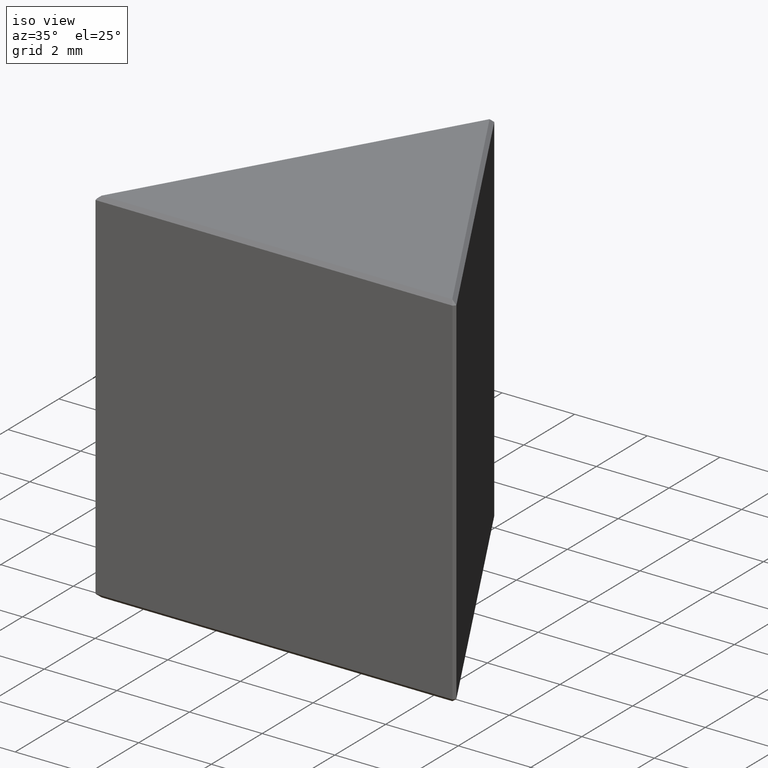
[diagram: clean part render]
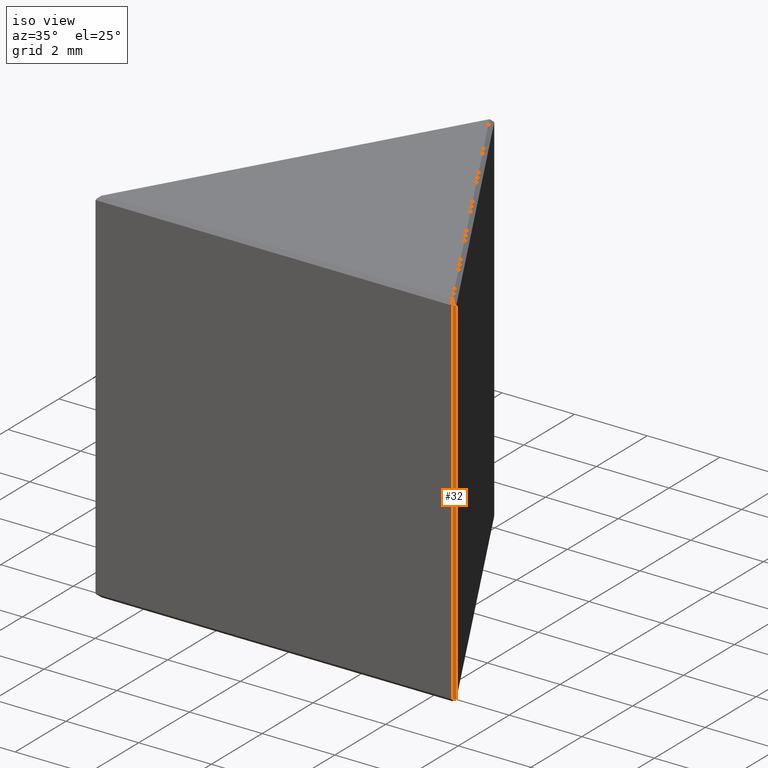
[diagram: same view with one face highlighted and labeled with its STEP entity id]
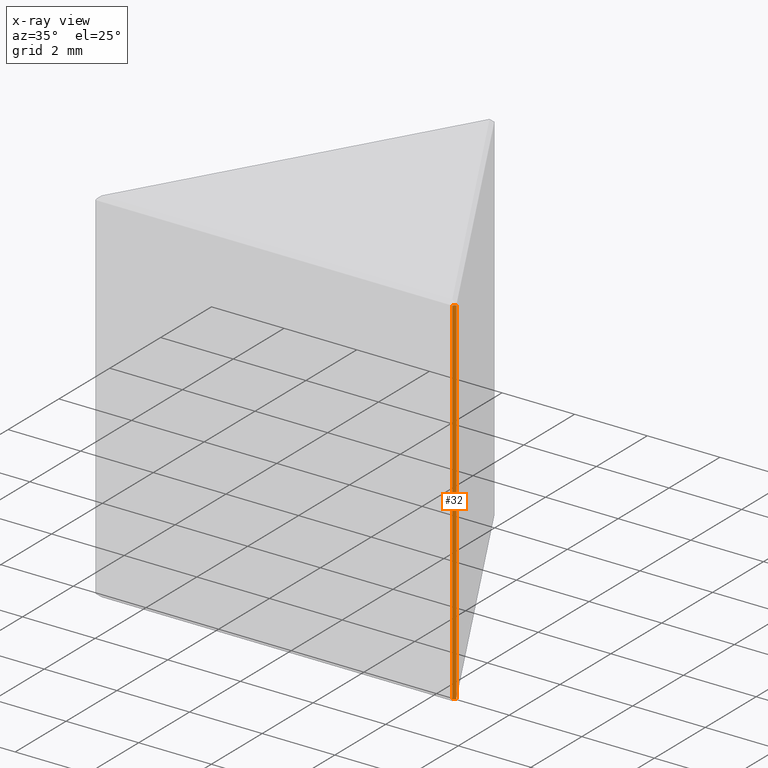
[diagram: x-ray of the same camera — body ghosted, the highlighted face saturated]
A machine part, iso view. The second image highlights one B-rep face of the part: STEP entity #32.
The next image is the same camera in x-ray: the body ghosted, the highlighted face saturated — about 0% of this face is hidden behind the body in this view.
In plain terms, the highlighted planar face has unit normal (-0.7071, 0.7071, 0).
Its self-contained STEP definition (entity closure, byte-faithful):
#7 = CARTESIAN_POINT ( 'NONE',  ( 4.899999999999998579, -8.660254037844387298, 0.09999999999999939493 ) ) ;
#23 = VECTOR ( 'NONE', #485, 1000.000000000000000 ) ;
#32 = ADVANCED_FACE ( 'NONE', ( #82 ), #359, .F. ) ;
#59 = EDGE_LOOP ( 'NONE', ( #189, #369, #148, #77 ) ) ;
#67 = VERTEX_POINT ( 'NONE', #204 ) ;
#77 = ORIENTED_EDGE ( 'NONE', *, *, #89, .F. ) ;
#82 = FACE_OUTER_BOUND ( 'NONE', #59, .T. ) ;
#89 = EDGE_CURVE ( 'NONE', #457, #67, #248, .T. ) ;
#139 = VECTOR ( 'NONE', #338, 1000.000000000000000 ) ;
#142 = CARTESIAN_POINT ( 'NONE',  ( 4.899999999999998579, -8.660254037844387298, 9.899999999999998579 ) ) ;
#147 = AXIS2_PLACEMENT_3D ( 'NONE', #427, #401, #207 ) ;
#148 = ORIENTED_EDGE ( 'NONE', *, *, #463, .F. ) ;
#177 = VERTEX_POINT ( 'NONE', #261 ) ;
#189 = ORIENTED_EDGE ( 'NONE', *, *, #218, .F. ) ;
#196 = CARTESIAN_POINT ( 'NONE',  ( 4.963397459621555541, -8.596856578222828560, 10.00000000000000000 ) ) ;
#203 = CARTESIAN_POINT ( 'NONE',  ( 4.963397459621555541, -8.596856578222828560, 0.09999999999999903411 ) ) ;
#204 = CARTESIAN_POINT ( 'NONE',  ( 4.963397459621555541, -8.596856578222828560, 0.09999999999999903411 ) ) ;
#207 = DIRECTION ( 'NONE',  ( 0.000000000000000000, 0.000000000000000000, -1.000000000000000000 ) ) ;
#218 = EDGE_CURVE ( 'NONE', #177, #457, #329, .T. ) ;
#244 = LINE ( 'NONE', #203, #441 ) ;
#248 = LINE ( 'NONE', #196, #294 ) ;
#261 = CARTESIAN_POINT ( 'NONE',  ( 4.899999999999998579, -8.660254037844387298, 9.899999999999998579 ) ) ;
#294 = VECTOR ( 'NONE', #355, 1000.000000000000000 ) ;
#306 = LINE ( 'NONE', #452, #23 ) ;
#329 = LINE ( 'NONE', #142, #139 ) ;
#333 = VERTEX_POINT ( 'NONE', #7 ) ;
#338 = DIRECTION ( 'NONE',  ( 0.7071067811865426878, 0.7071067811865524577, -2.866583523299665378E-17 ) ) ;
#355 = DIRECTION ( 'NONE',  ( 0.000000000000000000, 0.000000000000000000, -1.000000000000000000 ) ) ;
#359 = PLANE ( 'NONE',  #147 ) ;
#361 = DIRECTION ( 'NONE',  ( -0.7071067811865426878, -0.7071067811865522357, 4.048687686840371813E-15 ) ) ;
#369 = ORIENTED_EDGE ( 'NONE', *, *, #446, .F. ) ;
#376 = CARTESIAN_POINT ( 'NONE',  ( 4.963397459621555541, -8.596856578222828560, 9.899999999999998579 ) ) ;
#401 = DIRECTION ( 'NONE',  ( -0.7071067811865523467, 0.7071067811865426878, 0.000000000000000000 ) ) ;
#427 = CARTESIAN_POINT ( 'NONE',  ( 4.963397459621555541, -8.596856578222828560, 10.00000000000000000 ) ) ;
#441 = VECTOR ( 'NONE', #361, 1000.000000000000114 ) ;
#446 = EDGE_CURVE ( 'NONE', #333, #177, #306, .T. ) ;
#452 = CARTESIAN_POINT ( 'NONE',  ( 4.899999999999998579, -8.660254037844387298, 10.00000000000000000 ) ) ;
#457 = VERTEX_POINT ( 'NONE', #376 ) ;
#463 = EDGE_CURVE ( 'NONE', #67, #333, #244, .T. ) ;
#485 = DIRECTION ( 'NONE',  ( 0.000000000000000000, 0.000000000000000000, 1.000000000000000000 ) ) ;